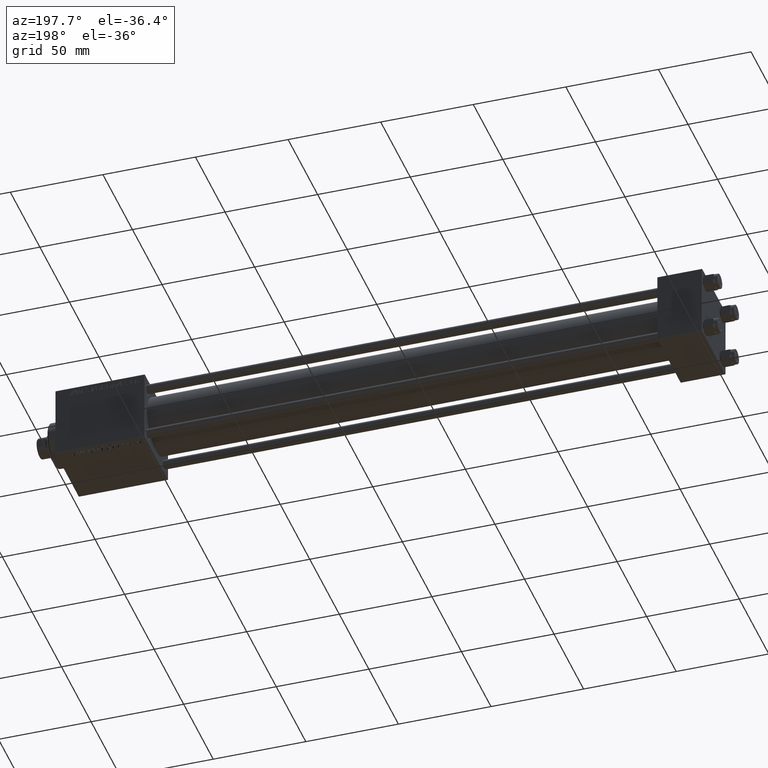
[diagram: clean part render]
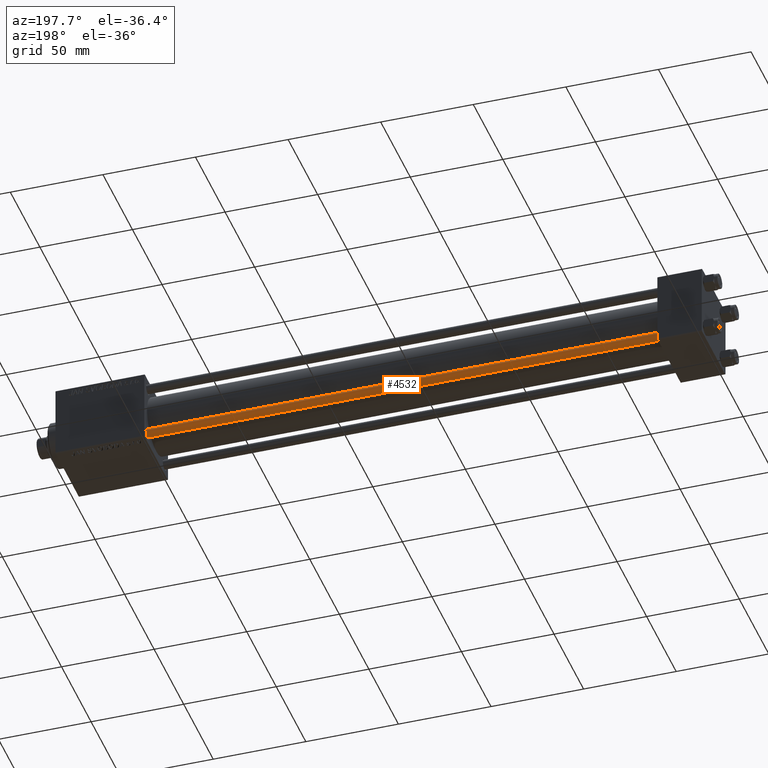
[diagram: same view with one face highlighted and labeled with its STEP entity id]
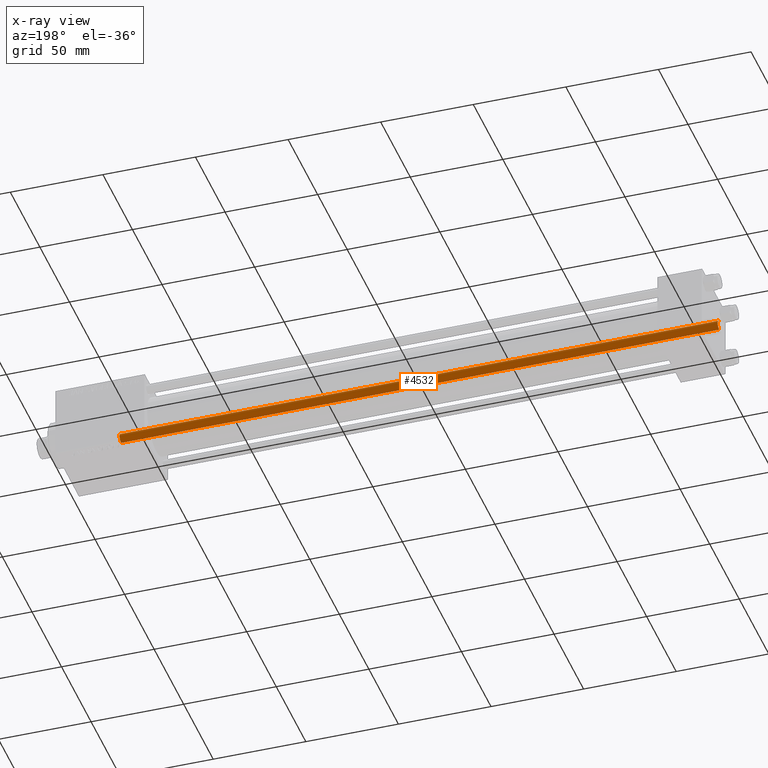
[diagram: x-ray of the same camera — body ghosted, the highlighted face saturated]
A machine part, auxiliary view. The second image highlights one B-rep face of the part: STEP entity #4532.
The next image is the same camera in x-ray: the body ghosted, the highlighted face saturated — about 0% of this face is hidden behind the body in this view.
In plain terms, the highlighted cylindrical surface (edge-blend (fillet) strip) has radius 2.5 mm, axis along (1, -0, 0).
Its self-contained STEP definition (entity closure, byte-faithful):
#406 = CARTESIAN_POINT ( 'NONE',  ( 0.000000000000000000, 0.000000000000000000, 324.0000000000000000 ) ) ;
#1784 = VERTEX_POINT ( 'NONE', #9124 ) ;
#2168 = EDGE_CURVE ( 'NONE', #44368, #36742, #14619, .T. ) ;
#3411 = CIRCLE ( 'NONE', #45487, 2.500000000000000000 ) ;
#3666 = CARTESIAN_POINT ( 'NONE',  ( 0.000000000000000000, 0.000000000000000000, 323.5000000000000568 ) ) ;
#4532 = ADVANCED_FACE ( 'NONE', ( #39701 ), #35137, .T. ) ;
#5534 = EDGE_CURVE ( 'NONE', #44368, #23381, #3411, .T. ) ;
#8284 = DIRECTION ( 'NONE',  ( -0.000000000000000000, -0.000000000000000000, -1.000000000000000000 ) ) ;
#9124 = CARTESIAN_POINT ( 'NONE',  ( 2.500000000000000000, 3.061616997868383141E-16, 0.4999999999998894218 ) ) ;
#10151 = CARTESIAN_POINT ( 'NONE',  ( 2.500000000000000000, 3.061616997868383141E-16, 323.5000000000000568 ) ) ;
#11106 = ORIENTED_EDGE ( 'NONE', *, *, #43200, .T. ) ;
#12195 = ORIENTED_EDGE ( 'NONE', *, *, #22590, .T. ) ;
#14619 = LINE ( 'NONE', #29822, #45411 ) ;
#18424 = DIRECTION ( 'NONE',  ( -0.000000000000000000, -0.000000000000000000, -1.000000000000000000 ) ) ;
#21222 = AXIS2_PLACEMENT_3D ( 'NONE', #406, #8284, #43239 ) ;
#22590 = EDGE_CURVE ( 'NONE', #23381, #1784, #36322, .T. ) ;
#23381 = VERTEX_POINT ( 'NONE', #10151 ) ;
#25591 = DIRECTION ( 'NONE',  ( -0.000000000000000000, -0.000000000000000000, -1.000000000000000000 ) ) ;
#28318 = EDGE_LOOP ( 'NONE', ( #44919, #12195, #11106, #40766 ) ) ;
#29822 = CARTESIAN_POINT ( 'NONE',  ( -2.500000000000000000, 0.000000000000000000, 324.0000000000000000 ) ) ;
#29869 = CIRCLE ( 'NONE', #41990, 2.500000000000000000 ) ;
#30789 = DIRECTION ( 'NONE',  ( 0.000000000000000000, 0.000000000000000000, -1.000000000000000000 ) ) ;
#31391 = CARTESIAN_POINT ( 'NONE',  ( 0.000000000000000000, 0.000000000000000000, 0.4999999999998894218 ) ) ;
#31636 = DIRECTION ( 'NONE',  ( 1.000000000000000000, 0.000000000000000000, 0.000000000000000000 ) ) ;
#35137 = CYLINDRICAL_SURFACE ( 'NONE', #21222, 2.500000000000000000 ) ;
#36322 = LINE ( 'NONE', #44854, #49057 ) ;
#36395 = CARTESIAN_POINT ( 'NONE',  ( -2.500000000000000000, 0.000000000000000000, 323.5000000000000568 ) ) ;
#36742 = VERTEX_POINT ( 'NONE', #37093 ) ;
#37093 = CARTESIAN_POINT ( 'NONE',  ( -2.500000000000000000, 0.000000000000000000, 0.4999999999998894218 ) ) ;
#38145 = DIRECTION ( 'NONE',  ( 1.000000000000000000, 0.000000000000000000, 0.000000000000000000 ) ) ;
#39701 = FACE_OUTER_BOUND ( 'NONE', #28318, .T. ) ;
#40766 = ORIENTED_EDGE ( 'NONE', *, *, #2168, .F. ) ;
#41990 = AXIS2_PLACEMENT_3D ( 'NONE', #31391, #43796, #31636 ) ;
#43200 = EDGE_CURVE ( 'NONE', #1784, #36742, #29869, .T. ) ;
#43239 = DIRECTION ( 'NONE',  ( -1.000000000000000000, 0.000000000000000000, 0.000000000000000000 ) ) ;
#43796 = DIRECTION ( 'NONE',  ( -0.000000000000000000, -0.000000000000000000, 1.000000000000000000 ) ) ;
#44368 = VERTEX_POINT ( 'NONE', #36395 ) ;
#44854 = CARTESIAN_POINT ( 'NONE',  ( 2.500000000000000000, 3.061616997868383141E-16, 324.0000000000000000 ) ) ;
#44919 = ORIENTED_EDGE ( 'NONE', *, *, #5534, .T. ) ;
#45411 = VECTOR ( 'NONE', #18424, 1000.000000000000000 ) ;
#45487 = AXIS2_PLACEMENT_3D ( 'NONE', #3666, #30789, #38145 ) ;
#49057 = VECTOR ( 'NONE', #25591, 1000.000000000000000 ) ;